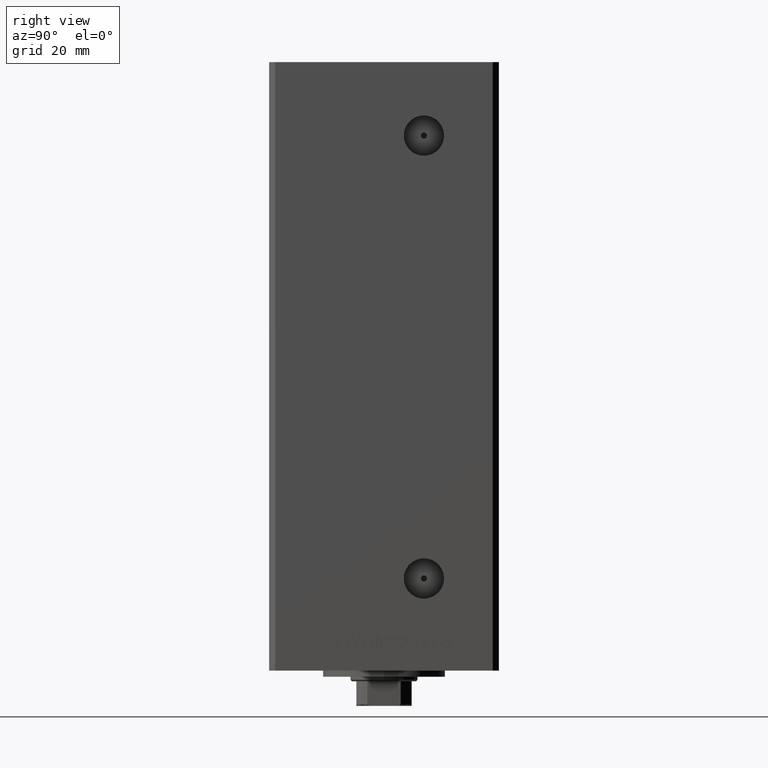
[diagram: clean part render]
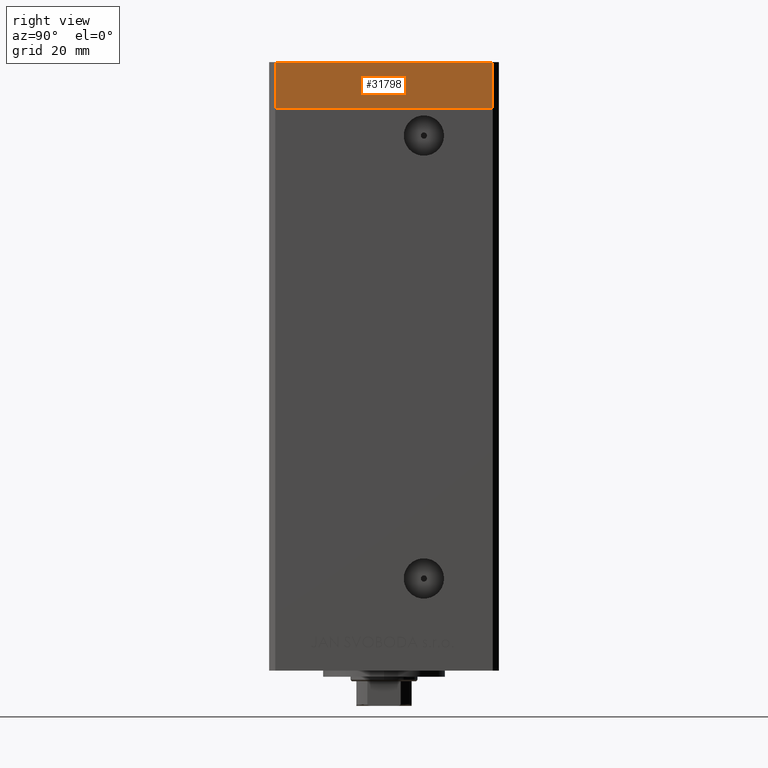
[diagram: same view with one face highlighted and labeled with its STEP entity id]
A machine part, right view. The second image highlights one B-rep face of the part: STEP entity #31798.
In plain terms, the highlighted planar face has unit normal (1, 0, 0).
Its self-contained STEP definition (entity closure, byte-faithful):
#122 = EDGE_LOOP ( 'NONE', ( #40404, #19938, #33896, #24690 ) ) ;
#1542 = DIRECTION ( 'NONE',  ( -1.172770800660376741E-15, 1.000000000000000000, 0.000000000000000000 ) ) ;
#2661 = CARTESIAN_POINT ( 'NONE',  ( 42.50000000000000711, -35.50000000000000000, -15.00000000000000000 ) ) ;
#4011 = VERTEX_POINT ( 'NONE', #41436 ) ;
#4015 = DIRECTION ( 'NONE',  ( 0.000000000000000000, 0.000000000000000000, 1.000000000000000000 ) ) ;
#4270 = EDGE_CURVE ( 'NONE', #4011, #36698, #36332, .T. ) ;
#4747 = VECTOR ( 'NONE', #41342, 1000.000000000000000 ) ;
#5279 = DIRECTION ( 'NONE',  ( 1.000000000000000000, 1.172770800660376741E-15, -0.000000000000000000 ) ) ;
#5362 = CARTESIAN_POINT ( 'NONE',  ( 42.49999999999992895, 35.50000000000000000, 0.000000000000000000 ) ) ;
#6618 = CARTESIAN_POINT ( 'NONE',  ( 42.50000000000000711, -35.50000000000000000, -15.00000000000000000 ) ) ;
#7262 = CARTESIAN_POINT ( 'NONE',  ( 42.50000000000000711, -35.50000000000000000, -15.00000000000000000 ) ) ;
#9937 = CARTESIAN_POINT ( 'NONE',  ( 42.50000000000000711, -35.50000000000000000, 0.000000000000000000 ) ) ;
#12775 = PLANE ( 'NONE',  #29740 ) ;
#13400 = VECTOR ( 'NONE', #32090, 1000.000000000000000 ) ;
#19463 = EDGE_CURVE ( 'NONE', #30334, #36698, #25885, .T. ) ;
#19938 = ORIENTED_EDGE ( 'NONE', *, *, #42175, .F. ) ;
#21537 = VECTOR ( 'NONE', #48524, 1000.000000000000000 ) ;
#24690 = ORIENTED_EDGE ( 'NONE', *, *, #19463, .T. ) ;
#25885 = LINE ( 'NONE', #26133, #4747 ) ;
#26133 = CARTESIAN_POINT ( 'NONE',  ( 42.49999999999992895, 35.50000000000000000, -15.00000000000000000 ) ) ;
#27287 = CARTESIAN_POINT ( 'NONE',  ( 42.49999999999992895, 35.50000000000000000, -15.00000000000000000 ) ) ;
#28839 = LINE ( 'NONE', #2661, #13400 ) ;
#29740 = AXIS2_PLACEMENT_3D ( 'NONE', #39429, #5279, #1542 ) ;
#30334 = VERTEX_POINT ( 'NONE', #27287 ) ;
#31707 = FACE_OUTER_BOUND ( 'NONE', #122, .T. ) ;
#31798 = ADVANCED_FACE ( 'NONE', ( #31707 ), #12775, .T. ) ;
#32090 = DIRECTION ( 'NONE',  ( -1.172770800660376741E-15, 1.000000000000000000, 0.000000000000000000 ) ) ;
#33896 = ORIENTED_EDGE ( 'NONE', *, *, #46037, .T. ) ;
#34947 = VERTEX_POINT ( 'NONE', #6618 ) ;
#36332 = LINE ( 'NONE', #9937, #21537 ) ;
#36698 = VERTEX_POINT ( 'NONE', #5362 ) ;
#37676 = LINE ( 'NONE', #7262, #49141 ) ;
#39429 = CARTESIAN_POINT ( 'NONE',  ( 42.50000000000000711, -35.50000000000000000, -15.00000000000000000 ) ) ;
#40404 = ORIENTED_EDGE ( 'NONE', *, *, #4270, .F. ) ;
#41342 = DIRECTION ( 'NONE',  ( 0.000000000000000000, 0.000000000000000000, 1.000000000000000000 ) ) ;
#41436 = CARTESIAN_POINT ( 'NONE',  ( 42.50000000000000711, -35.50000000000000000, 0.000000000000000000 ) ) ;
#42175 = EDGE_CURVE ( 'NONE', #34947, #4011, #37676, .T. ) ;
#46037 = EDGE_CURVE ( 'NONE', #34947, #30334, #28839, .T. ) ;
#48524 = DIRECTION ( 'NONE',  ( -1.172770800660376741E-15, 1.000000000000000000, 0.000000000000000000 ) ) ;
#49141 = VECTOR ( 'NONE', #4015, 1000.000000000000000 ) ;